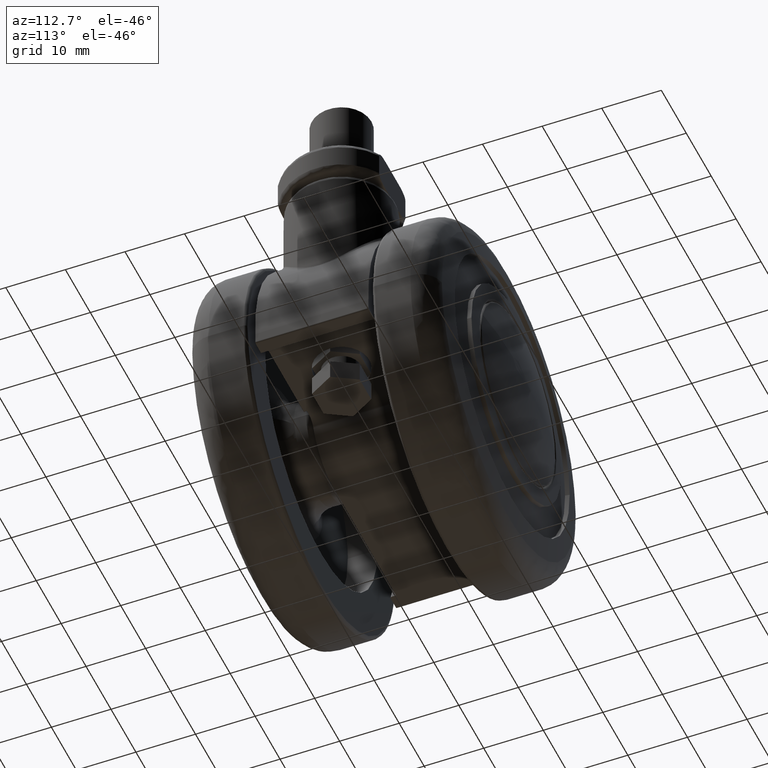
[diagram: clean part render]
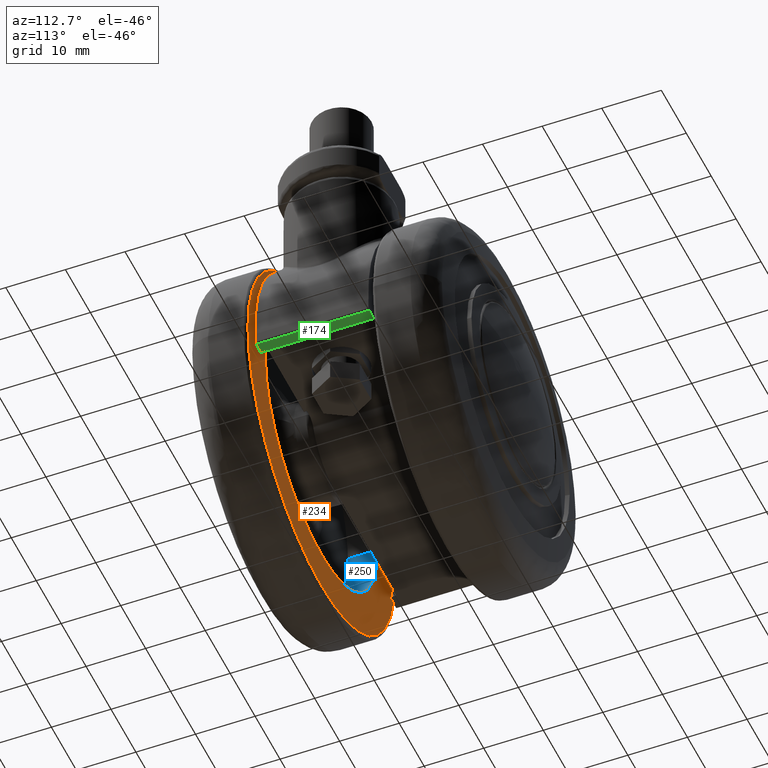
[diagram: same view with three faces highlighted in distinct colors, each labeled with its STEP entity id]
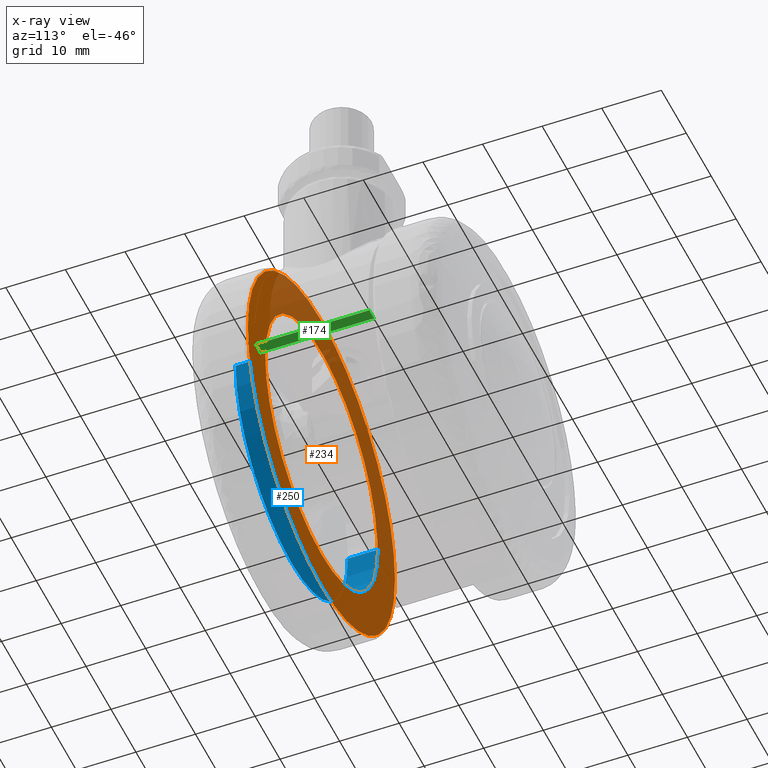
[diagram: x-ray of the same camera — body ghosted, the three highlighted faces saturated]
A machine part, auxiliary view with three faces highlighted in distinct colors.
The next image is the same camera in x-ray (body ghosted, the three faces saturated) — at least one of them is partly hidden behind the body in this view.
Their STEP definitions:

[orange] entity #234 — the highlighted planar face has unit normal (0, -1, 0).
#234=ADVANCED_FACE('',(#1076,#1077),#1075,.F.);
#1075=PLANE('',#3547);
#1076=FACE_OUTER_BOUND('',#3548,.T.);
#1077=FACE_BOUND('',#3549,.T.);
#3544=CARTESIAN_POINT('',(-6.78500000000E+01,-6.10954988233E+01,2.00000000000E+00));
#3545=DIRECTION('',(0.00000000000E+00,0.00000000000E+00,1.00000000000E+00));
#3546=DIRECTION('',(1.00000000000E+00,0.00000000000E+00,0.00000000000E+00));
#3547=AXIS2_PLACEMENT_3D('',#3544,#3545,#3546);
#3548=EDGE_LOOP('',(#4875,#4876));
#3549=EDGE_LOOP('',(#4877,#4878,#4879));
#4875=ORIENTED_EDGE('',*,*,#5419,.T.);
#4876=ORIENTED_EDGE('',*,*,#5420,.T.);
#4877=ORIENTED_EDGE('',*,*,#5421,.F.);
#4878=ORIENTED_EDGE('',*,*,#5422,.F.);
#4879=ORIENTED_EDGE('',*,*,#5423,.F.);
#5419=EDGE_CURVE('',#6904,#6905,#6906,.T.);
#5420=EDGE_CURVE('',#6905,#6904,#6912,.T.);
#5421=EDGE_CURVE('',#6918,#6919,#6920,.T.);
#5422=EDGE_CURVE('',#6926,#6918,#6927,.T.);
#5423=EDGE_CURVE('',#6919,#6926,#6933,.T.);
#6904=VERTEX_POINT('',#9151);
#6905=VERTEX_POINT('',#9152);
#6906=CIRCLE('',#9156,2.95000000000E+01);
#6912=CIRCLE('',#9160,2.95000000000E+01);
#6918=VERTEX_POINT('',#9161);
#6919=VERTEX_POINT('',#9162);
#6920=CIRCLE('',#9166,2.25000000000E+01);
#6926=VERTEX_POINT('',#9167);
#6927=CIRCLE('',#9171,2.25000000000E+01);
#6933=CIRCLE('',#9175,2.25000000000E+01);
#9151=CARTESIAN_POINT('',(2.95000000000E+01,-3.07354836874E-17,2.00000000000E+00));
#9152=CARTESIAN_POINT('',(-2.95000000000E+01,-8.28966525053E-15,2.00000000000E+00));
#9153=CARTESIAN_POINT('',(0.00000000000E+00,0.00000000000E+00,2.00000000000E+00));
#9154=DIRECTION('',(0.00000000000E+00,0.00000000000E+00,-1.00000000000E+00));
#9155=DIRECTION('',(1.00000000000E+00,-1.23502516185E-16,-0.00000000000E+00));
#9156=AXIS2_PLACEMENT_3D('',#9153,#9154,#9155);
#9157=CARTESIAN_POINT('',(0.00000000000E+00,0.00000000000E+00,2.00000000000E+00));
#9158=DIRECTION('',(0.00000000000E+00,0.00000000000E+00,-1.00000000000E+00));
#9159=DIRECTION('',(1.00000000000E+00,-1.23502516185E-16,-0.00000000000E+00));
#9160=AXIS2_PLACEMENT_3D('',#9157,#9158,#9159);
#9161=CARTESIAN_POINT('',(-2.25000000000E+01,-8.03386126938E-08,2.00000000000E+00));
#9162=CARTESIAN_POINT('',(-2.23970834024E+01,2.14957090231E+00,2.00000000000E+00));
#9163=CARTESIAN_POINT('',(0.00000000000E+00,0.00000000000E+00,2.00000000000E+00));
#9164=DIRECTION('',(0.00000000000E+00,0.00000000000E+00,-1.00000000000E+00));
#9165=DIRECTION('',(-9.95425928997E-01,9.55364845470E-02,0.00000000000E+00));
#9166=AXIS2_PLACEMENT_3D('',#9163,#9164,#9165);
#9167=CARTESIAN_POINT('',(2.24999999999E+01,-5.45503734179E-05,2.00000000000E+00));
#9168=CARTESIAN_POINT('',(0.00000000000E+00,0.00000000000E+00,2.00000000000E+00));
#9169=DIRECTION('',(0.00000000000E+00,0.00000000000E+00,-1.00000000000E+00));
#9170=DIRECTION('',(-9.95425928997E-01,9.55364845470E-02,0.00000000000E+00));
#9171=AXIS2_PLACEMENT_3D('',#9168,#9169,#9170);
#9172=CARTESIAN_POINT('',(0.00000000000E+00,0.00000000000E+00,2.00000000000E+00));
#9173=DIRECTION('',(0.00000000000E+00,0.00000000000E+00,-1.00000000000E+00));
#9174=DIRECTION('',(-9.95425928997E-01,9.55364845470E-02,0.00000000000E+00));
#9175=AXIS2_PLACEMENT_3D('',#9172,#9173,#9174);

[blue] entity #250 — the highlighted cylindrical surface (partial cylindrical patch) has radius 22.5 mm, axis along (-0, 1, -0).
#250=ADVANCED_FACE('',(#1242),#1241,.F.);
#1241=CYLINDRICAL_SURFACE('',#3879,2.25000000000E+01);
#1242=FACE_OUTER_BOUND('',#3880,.T.);
#3876=CARTESIAN_POINT('',(0.00000000000E+00,0.00000000000E+00,4.50000000000E+00));
#3877=DIRECTION('',(-0.00000000000E+00,-0.00000000000E+00,-1.00000000000E+00));
#3878=DIRECTION('',(-1.00000000000E+00,-0.00000000000E+00,-0.00000000000E+00));
#3879=AXIS2_PLACEMENT_3D('',#3876,#3877,#3878);
#3880=EDGE_LOOP('',(#4944,#4945,#4946,#4947));
#4944=ORIENTED_EDGE('',*,*,#5422,.T.);
#4945=ORIENTED_EDGE('',*,*,#5463,.F.);
#4946=ORIENTED_EDGE('',*,*,#5429,.T.);
#4947=ORIENTED_EDGE('',*,*,#5464,.T.);
#5422=EDGE_CURVE('',#6926,#6918,#6927,.T.);
#5429=EDGE_CURVE('',#6975,#6967,#6976,.T.);
#5463=EDGE_CURVE('',#6975,#6918,#7204,.T.);
#5464=EDGE_CURVE('',#6967,#6926,#7210,.T.);
#6918=VERTEX_POINT('',#9161);
#6926=VERTEX_POINT('',#9167);
#6927=CIRCLE('',#9171,2.25000000000E+01);
#6967=VERTEX_POINT('',#9196);
#6975=VERTEX_POINT('',#9202);
#6976=CIRCLE('',#9206,2.25000000000E+01);
#7204=(BOUNDED_CURVE() B_SPLINE_CURVE(1,(#9365,#9366),.UNSPECIFIED.,.F.,.F.) B_SPLINE_CURVE_WITH_KNOTS((2,2),(8.33333313467E-02,9.16666664002E-01),.UNSPECIFIED.) CURVE() GEOMETRIC_REPRESENTATION_ITEM() RATIONAL_B_SPLINE_CURVE((1.00000000000E+00,1.00000000000E+00)) REPRESENTATION_ITEM('') );
#7210=(BOUNDED_CURVE() B_SPLINE_CURVE(1,(#9367,#9368),.UNSPECIFIED.,.F.,.F.) B_SPLINE_CURVE_WITH_KNOTS((2,2),(8.33333333333E-02,9.16666666667E-01),.UNSPECIFIED.) CURVE() GEOMETRIC_REPRESENTATION_ITEM() RATIONAL_B_SPLINE_CURVE((7.50000000000E-01,7.50000000000E-01)) REPRESENTATION_ITEM('') );
#9161=CARTESIAN_POINT('',(-2.25000000000E+01,-8.03386126938E-08,2.00000000000E+00));
#9167=CARTESIAN_POINT('',(2.24999999999E+01,-5.45503734179E-05,2.00000000000E+00));
#9168=CARTESIAN_POINT('',(0.00000000000E+00,0.00000000000E+00,2.00000000000E+00));
#9169=DIRECTION('',(0.00000000000E+00,0.00000000000E+00,-1.00000000000E+00));
#9170=DIRECTION('',(-9.95425928997E-01,9.55364845470E-02,0.00000000000E+00));
#9171=AXIS2_PLACEMENT_3D('',#9168,#9169,#9170);
#9196=CARTESIAN_POINT('',(2.24999999999E+01,-5.45502832697E-05,7.00000000000E+00));
#9202=CARTESIAN_POINT('',(-2.25000000000E+01,-8.03386128400E-08,7.00000000000E+00));
#9203=CARTESIAN_POINT('',(0.00000000000E+00,0.00000000000E+00,7.00000000000E+00));
#9204=DIRECTION('',(0.00000000000E+00,0.00000000000E+00,1.00000000000E+00));
#9205=DIRECTION('',(-9.95425928997E-01,9.55364845470E-02,0.00000000000E+00));
#9206=AXIS2_PLACEMENT_3D('',#9203,#9204,#9205);
#9365=CARTESIAN_POINT('',(-2.25000000000E+01,0.00000000000E+00,7.00000001192E+00));
#9366=CARTESIAN_POINT('',(-2.25000000000E+01,0.00000000000E+00,2.00000001599E+00));
#9367=CARTESIAN_POINT('',(2.25000000000E+01,0.00000000000E+00,7.00000000000E+00));
#9368=CARTESIAN_POINT('',(2.25000000000E+01,0.00000000000E+00,2.00000000000E+00));

[green] entity #174 — the highlighted planar face has unit normal (0, 0, 1).
#174=ADVANCED_FACE('',(#471),#470,.F.);
#470=PLANE('',#2055);
#471=FACE_OUTER_BOUND('',#2056,.T.);
#2052=CARTESIAN_POINT('',(2.88515476954E+01,1.14000000000E+01,-3.50000000000E+00));
#2053=DIRECTION('',(0.00000000000E+00,0.00000000000E+00,1.00000000000E+00));
#2054=DIRECTION('',(-1.00000000000E+00,0.00000000000E+00,0.00000000000E+00));
#2055=AXIS2_PLACEMENT_3D('',#2052,#2053,#2054);
#2056=EDGE_LOOP('',(#4614,#4615,#4616,#4617));
#4614=ORIENTED_EDGE('',*,*,#5248,.T.);
#4615=ORIENTED_EDGE('',*,*,#5318,.T.);
#4616=ORIENTED_EDGE('',*,*,#5263,.T.);
#4617=ORIENTED_EDGE('',*,*,#5319,.T.);
#5248=EDGE_CURVE('',#5772,#5765,#5773,.T.);
#5263=EDGE_CURVE('',#5875,#5868,#5876,.T.);
#5318=EDGE_CURVE('',#5765,#5875,#6244,.T.);
#5319=EDGE_CURVE('',#5868,#5772,#6250,.T.);
#5765=VERTEX_POINT('',#8280);
#5772=VERTEX_POINT('',#8285);
#5773=LINE('',#8286,#8287);
#5868=VERTEX_POINT('',#8355);
#5875=VERTEX_POINT('',#8360);
#5876=LINE('',#8361,#8362);
#6244=LINE('',#8675,#8676);
#6250=LINE('',#8678,#8679);
#8280=CARTESIAN_POINT('',(2.67575131125E+01,-9.50000000000E+00,-3.50000000000E+00));
#8285=CARTESIAN_POINT('',(2.86611809151E+01,-9.50000000000E+00,-3.50000000000E+00));
#8286=CARTESIAN_POINT('',(2.86611809151E+01,-9.50000000000E+00,-3.50000000000E+00));
#8287=VECTOR('',#8288,1.90366780269E+00);
#8288=DIRECTION('',(-1.00000000000E+00,0.00000000000E+00,0.00000000000E+00));
#8355=CARTESIAN_POINT('',(2.86611809151E+01,9.50000000000E+00,-3.50000000000E+00));
#8360=CARTESIAN_POINT('',(2.67575131125E+01,9.50000000000E+00,-3.50000000000E+00));
#8361=CARTESIAN_POINT('',(2.67575131125E+01,9.50000000000E+00,-3.50000000000E+00));
#8362=VECTOR('',#8363,1.90366780269E+00);
#8363=DIRECTION('',(1.00000000000E+00,0.00000000000E+00,0.00000000000E+00));
#8675=CARTESIAN_POINT('',(2.67575131125E+01,-9.50000000000E+00,-3.50000000000E+00));
#8676=VECTOR('',#8677,1.90000000000E+01);
#8677=DIRECTION('',(1.86984930463E-16,1.00000000000E+00,0.00000000000E+00));
#8678=CARTESIAN_POINT('',(2.86611809151E+01,9.50000000000E+00,-3.50000000000E+00));
#8679=VECTOR('',#8680,1.90000000000E+01);
#8680=DIRECTION('',(0.00000000000E+00,-1.00000000000E+00,0.00000000000E+00));